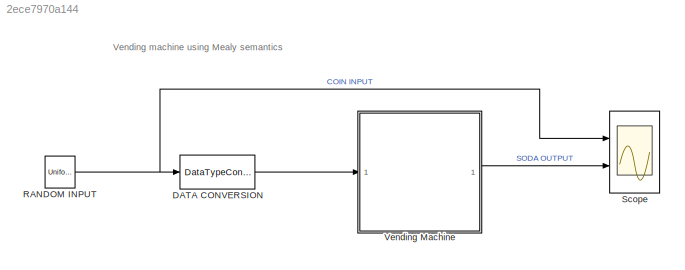
MODEL slx_2ece7970a144
KIND model
CONFIG AbsTol = auto
CONFIG EnableMultiTasking = off
CONFIG FixedStep = auto
CONFIG MaxStep = auto
CONFIG MinStep = auto
CONFIG RelTol = 1e-3
CONFIG SampleTimeConstraint = Unconstrained
CONFIG SolverName = VariableStepAuto
CONFIG StartTime = 0.0
CONFIG StopTime = 100
BLOCK [DataTypeConversion] DATA CONVERSION
  OutDataTypeStr = int8
  RndMeth = Nearest
BLOCK [UniformRandomNumber] RANDOM INPUT
  Maximum = 2
  Minimum = 0
  SampleTime = 5
  Seed = 337
BLOCK [Scope] Scope
  Floating = off
  NumInputPorts = 2
  Ports = [2]
  ScopeSpecificationString = Simulink.scopes.TimeScopeBlockCfg('CurrentConfiguration', extmgr.ConfigurationSet(extmgr.Configuration('Core','General UI',true),extmgr.Configuration('Core','Source UI',true),extmgr.Configuration('Sources','WiredSimulink',true),extmgr.Configuration('Visuals','Time Domain',true,'SerializedDisplays',{struct('MinYLimReal','-0.22184','MaxYLimReal','2.24179','YLabelReal','','MinYLimMag','0.00000','MaxY...<+1967ch>
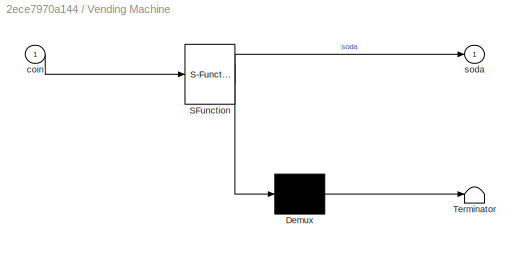
BLOCK [SubSystem] Vending Machine
  ErrorFcn = Stateflow.Translate.translate
  PermitHierarchicalResolution = ExplicitOnly
  Ports = [1, 1]
  RequestExecContextInheritance = off
  SFBlockType = Chart
  TreatAsAtomicUnit = on
BLOCK [Demux] Vending Machine/ Demux 
  Outputs = 1
  Ports = [1, 1]
BLOCK [S-Function] Vending Machine/ SFunction 
  EnableBusSupport = on
  FunctionName = sf_sfun
  PortCounts = [1 2]
  Ports = [1, 2]
  SFcnIsStateOwnerBlock = off
  SFunctionDeploymentMode = off
  Tag = Stateflow S-Function 3
BLOCK [Terminator] Vending Machine/ Terminator 
BLOCK [Inport] Vending Machine/coin
BLOCK [Outport] Vending Machine/soda
ANNOTATION (root): Vending machine using Mealy semantics
LINE DATA CONVERSION:1 -> Vending Machine:1
NET RANDOM INPUT:1 -> DATA CONVERSION:1, Scope:1
LINE Vending Machine:1 -> Scope:2
note: NET lines group one-source signal fan-out (src -> all destinations, sorted); 1:1 wires keep LINE
CHART Vending Machine states=3 transitions=7
  STATE_LABEL 'recived_0'
  STATE_LABEL 'recived_nickel'
  STATE_LABEL 'recived_dime'
CHART  states=0 transitions=0
